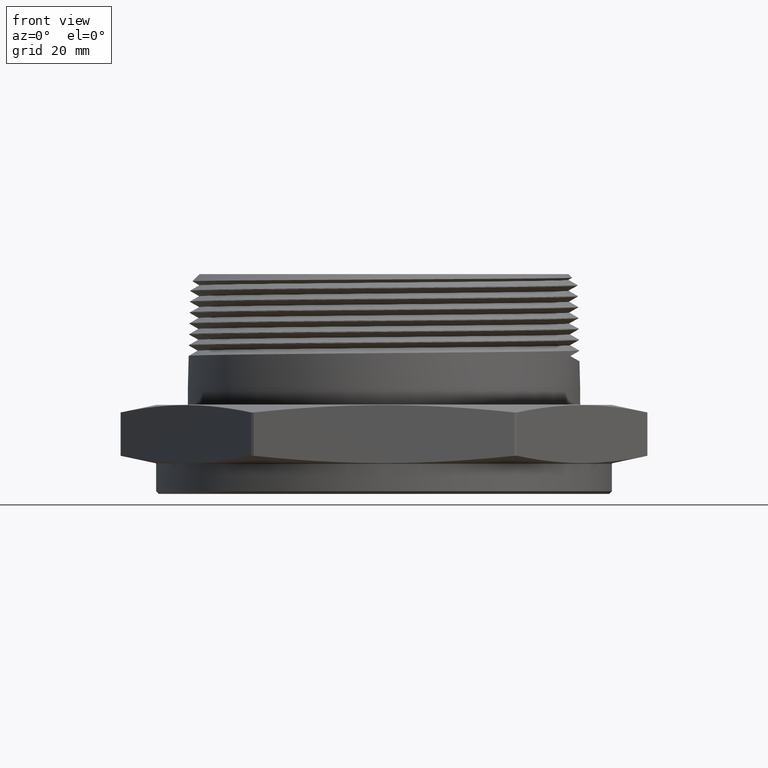
[diagram: clean part render]
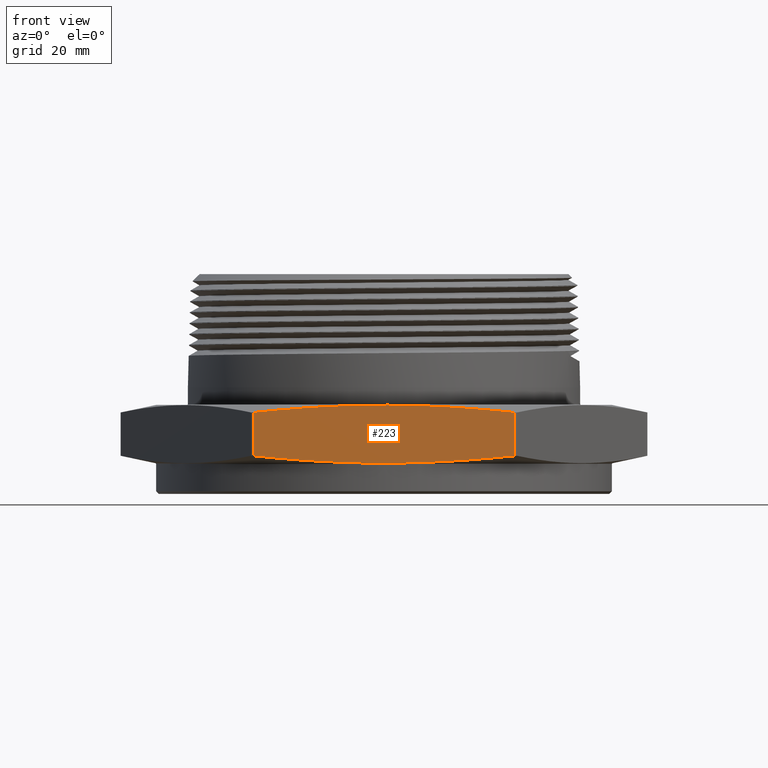
[diagram: same view with one face highlighted and labeled with its STEP entity id]
A machine part, front view. The second image highlights one B-rep face of the part: STEP entity #223.
In plain terms, the highlighted planar face has unit normal (-0, 1, 0).
Its self-contained STEP definition (entity closure, byte-faithful):
#139 = VERTEX_POINT ( 'NONE', #3213 ) ;
#153 = VERTEX_POINT ( 'NONE', #3499 ) ;
#209 = FACE_OUTER_BOUND ( 'NONE', #6535, .T. ) ;
#223 = ADVANCED_FACE ( 'NONE', ( #209 ), #3549, .F. ) ;
#1926 = CARTESIAN_POINT ( 'NONE',  ( 1.495444155338167700, -2.624999999999999100, 0.08631686313178307800 ) ) ;
#1932 = CARTESIAN_POINT ( 'NONE',  ( -1.495444155338166800, -2.624999999999999600, 0.08631686313178364700 ) ) ;
#2445 = CARTESIAN_POINT ( 'NONE',  ( -1.495444155338166800, -2.624999999999999600, 1.831390898138501000E-016 ) ) ;
#2446 = DIRECTION ( 'NONE',  ( -1.224646799147351200E-016, -0.0000000000000000000, -1.000000000000000000 ) ) ;
#2465 = DIRECTION ( 'NONE',  ( 1.224646799147351200E-016, 0.0000000000000000000, 1.000000000000000000 ) ) ;
#2468 = CARTESIAN_POINT ( 'NONE',  ( 1.495444155338167900, -2.624999999999999600, -1.831390898138501000E-016 ) ) ;
#2490 = CARTESIAN_POINT ( 'NONE',  ( 1.246737935579690600, -2.624999999999999600, 0.6098509756414888200 ) ) ;
#2491 = CARTESIAN_POINT ( 'NONE',  ( 1.495444155338167700, -2.624999999999999100, 0.5836831368682159300 ) ) ;
#2501 = CARTESIAN_POINT ( 'NONE',  ( 0.9979211737875096600, -2.624999999999999600, 0.6310888955953113400 ) ) ;
#2502 = CARTESIAN_POINT ( 'NONE',  ( 0.4999863554158675000, -2.625000000000000000, 0.6601276854300962600 ) ) ;
#2503 = CARTESIAN_POINT ( 'NONE',  ( 0.2508663705636963700, -2.624999999999999600, 0.6678425588118422900 ) ) ;
#2504 = CARTESIAN_POINT ( 'NONE',  ( -0.2477181505718189200, -2.624999999999999100, 0.6679061093157715500 ) ) ;
#2505 = CARTESIAN_POINT ( 'NONE',  ( -0.4971827421629466700, -2.625000000000000000, 0.6602523198388604600 ) ) ;
#2506 = CARTESIAN_POINT ( 'NONE',  ( -0.9964197833014738500, -2.625000000000000400, 0.6312149886677038700 ) ) ;
#2507 = CARTESIAN_POINT ( 'NONE',  ( -1.246409596384159700, -2.625000000000000400, 0.6098855221322845300 ) ) ;
#2508 = CARTESIAN_POINT ( 'NONE',  ( -1.495444155338166800, -2.624999999999999600, 0.5836831368682162700 ) ) ;
#2518 = CARTESIAN_POINT ( 'NONE',  ( -1.246409596384159300, -2.625000000000000000, 0.06011447786771533700 ) ) ;
#2519 = CARTESIAN_POINT ( 'NONE',  ( -1.495444155338166800, -2.624999999999999600, 0.08631686313178364700 ) ) ;
#2529 = CARTESIAN_POINT ( 'NONE',  ( -0.9964197833014728500, -2.625000000000000400, 0.03878501133229568500 ) ) ;
#2530 = CARTESIAN_POINT ( 'NONE',  ( -0.4971827421629457200, -2.625000000000000000, 0.009747680161138810500 ) ) ;
#2531 = CARTESIAN_POINT ( 'NONE',  ( -0.2477181505718180400, -2.624999999999999600, 0.002093890684227569700 ) ) ;
#2532 = CARTESIAN_POINT ( 'NONE',  ( 0.2508663705636973200, -2.624999999999999600, 0.002157441188157029400 ) ) ;
#2533 = CARTESIAN_POINT ( 'NONE',  ( 0.4999863554158681100, -2.624999999999999600, 0.009872314569902992900 ) ) ;
#2534 = CARTESIAN_POINT ( 'NONE',  ( 0.9979211737875105500, -2.624999999999999600, 0.03891110440468788200 ) ) ;
#2535 = CARTESIAN_POINT ( 'NONE',  ( 1.246737935579691700, -2.624999999999999600, 0.06014902435851036300 ) ) ;
#2536 = CARTESIAN_POINT ( 'NONE',  ( 1.495444155338167700, -2.624999999999999100, 0.08631686313178307800 ) ) ;
#3213 = CARTESIAN_POINT ( 'NONE',  ( 1.495444155338167700, -2.624999999999999100, 0.5836831368682159300 ) ) ;
#3499 = CARTESIAN_POINT ( 'NONE',  ( -1.495444155338166800, -2.624999999999999600, 0.5836831368682162700 ) ) ;
#3549 = PLANE ( 'NONE',  #7569 ) ;
#3550 = CARTESIAN_POINT ( 'NONE',  ( -1.515544456622767400, -2.625000000000000000, 0.6700000000000000400 ) ) ;
#3555 = DIRECTION ( 'NONE',  ( -1.802552199459659500E-016, 1.000000000000000000, 0.0000000000000000000 ) ) ;
#3556 = DIRECTION ( 'NONE',  ( -1.000000000000000000, -1.802552199459659500E-016, 0.0000000000000000000 ) ) ;
#5521 = B_SPLINE_CURVE_WITH_KNOTS ( 'NONE', 3,
 ( #2491, #2490, #2501, #2502, #2503, #2504, #2505, #2506, #2507, #2508 ),
 .UNSPECIFIED., .F., .F.,
 ( 4, 2, 2, 2, 4 ),
 ( 0.1460079496805055400, 0.1650573808308880000, 0.1841068119812704600, 0.2031562431316529200, 0.2222056742820353900 ),
 .UNSPECIFIED. ) ;
#5524 = B_SPLINE_CURVE_WITH_KNOTS ( 'NONE', 3,
 ( #2519, #2518, #2529, #2530, #2531, #2532, #2533, #2534, #2535, #2536 ),
 .UNSPECIFIED., .F., .F.,
 ( 4, 2, 2, 2, 4 ),
 ( 0.06441119267861986100, 0.08347927755462300500, 0.1025473624306261300, 0.1216154473066292700, 0.1406835321826324100 ),
 .UNSPECIFIED. ) ;
#6395 = VERTEX_POINT ( 'NONE', #1926 ) ;
#6401 = VERTEX_POINT ( 'NONE', #1932 ) ;
#6535 = EDGE_LOOP ( 'NONE', ( #6606, #6607, #6608, #6609 ) ) ;
#6606 = ORIENTED_EDGE ( 'NONE', *, *, #7537, .T. ) ;
#6607 = ORIENTED_EDGE ( 'NONE', *, *, #7524, .T. ) ;
#6608 = ORIENTED_EDGE ( 'NONE', *, *, #7534, .T. ) ;
#6609 = ORIENTED_EDGE ( 'NONE', *, *, #7517, .T. ) ;
#7354 = LINE ( 'NONE', #2445, #7356 ) ;
#7356 = VECTOR ( 'NONE', #2446, 39.37007874015748100 ) ;
#7363 = LINE ( 'NONE', #2468, #7367 ) ;
#7367 = VECTOR ( 'NONE', #2465, 39.37007874015748100 ) ;
#7517 = EDGE_CURVE ( 'NONE', #153, #6401, #7354, .T. ) ;
#7524 = EDGE_CURVE ( 'NONE', #6395, #139, #7363, .T. ) ;
#7534 = EDGE_CURVE ( 'NONE', #139, #153, #5521, .T. ) ;
#7537 = EDGE_CURVE ( 'NONE', #6401, #6395, #5524, .T. ) ;
#7569 = AXIS2_PLACEMENT_3D ( 'NONE', #3550, #3555, #3556 ) ;